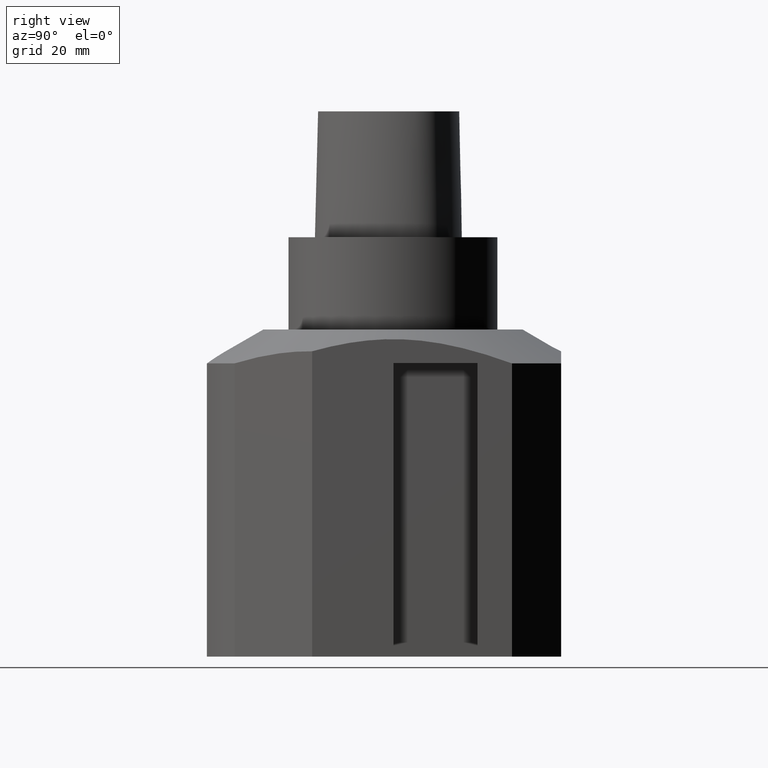
[diagram: clean part render]
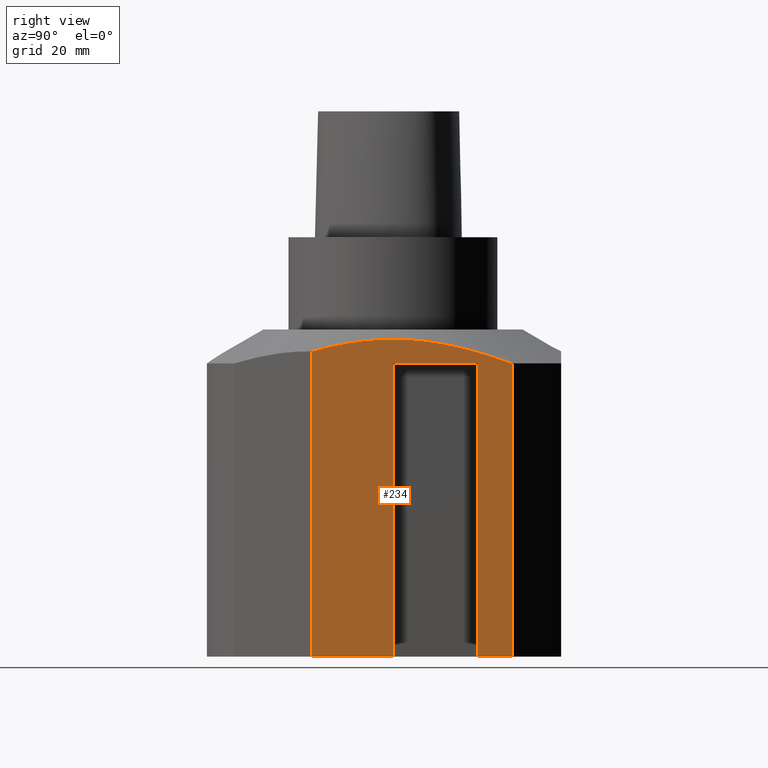
[diagram: same view with one face highlighted and labeled with its STEP entity id]
A machine part, right view. The second image highlights one B-rep face of the part: STEP entity #234.
In plain terms, the highlighted planar face has unit normal (1, -0, 0).
Its self-contained STEP definition (entity closure, byte-faithful):
#128=EDGE_CURVE('240[2]',#374,#375,#376,.T.);
#216=EDGE_CURVE('240[2]',#422,#507,#508,.T.);
#234=ADVANCED_FACE('240[2]',(#532),#533,.T.);
#244=EDGE_CURVE('240[2]',#543,#544,#545,.T.);
#252=EDGE_CURVE('240[2]',#374,#512,#554,.T.);
#288=EDGE_CURVE('240[2]',#512,#597,#598,.T.);
#290=EDGE_CURVE('240[2]',#422,#544,#600,.T.);
#323=EDGE_CURVE('240[2]',#597,#507,#639,.T.);
#342=EDGE_CURVE('240[2]',#375,#543,#661,.T.);
#374=VERTEX_POINT('',#706);
#375=VERTEX_POINT('',#707);
#376=LINE('',#708,#709);
#422=VERTEX_POINT('',#776);
#507=VERTEX_POINT('',#1056);
#508=LINE('',#1057,#1058);
#512=VERTEX_POINT('',#1065);
#532=FACE_OUTER_BOUND('',#1096,.T.);
#533=PLANE('',#1097);
#543=VERTEX_POINT('',#1125);
#544=VERTEX_POINT('',#1126);
#545=(B_SPLINE_CURVE(3,(#1128,#1129,#1130,#1131,#1132,#1133,#1134,#1135,#1136,#1137),.UNSPECIFIED.,.F.,.F.)B_SPLINE_CURVE_WITH_KNOTS((4,3,3,4),(-0.0701450685801817,2.44845535964196,44.6118598380873,50.2285192789122),.UNSPECIFIED.)RATIONAL_B_SPLINE_CURVE((1.0,1.0,1.0,1.0,1.1244176482899,1.14955333864921,1.07540707107796,1.07540707107796,1.07540707107796,1.07540707107796))BOUNDED_CURVE()REPRESENTATION_ITEM('')GEOMETRIC_REPRESENTATION_ITEM()CURVE());
#554=LINE('',#1167,#1168);
#597=VERTEX_POINT('',#1234);
#598=LINE('',#1235,#1236);
#600=LINE('',#1239,#1240);
#639=LINE('',#1688,#1689);
#661=LINE('',#1722,#1723);
#706=CARTESIAN_POINT('',(35.0000000000004,19.9999999999999,-99.9999999999999));
#707=CARTESIAN_POINT('',(35.0000000000002,28.2842712474617,-99.9999999999999));
#708=CARTESIAN_POINT('',(34.9999999999999,19.9999999999999,-99.9999999999999));
#709=VECTOR('',#1732,1.35415650406199);
#776=CARTESIAN_POINT('',(35.0000000000002,-19.3782217350844,-99.9999999999999));
#1056=CARTESIAN_POINT('',(35.0000000000001,-5.6843418860808E-014,-99.9999999999999));
#1057=CARTESIAN_POINT('',(34.9999999999999,-14.0192378864694,-99.9999999999999));
#1058=VECTOR('',#1867,14.0192378864693);
#1065=CARTESIAN_POINT('',(35.0000000000004,19.9999999999999,-29.9999987706541));
#1096=EDGE_LOOP('',(#1883,#1884,#1885,#1886,#1887,#1888,#1889,#1890));
#1097=AXIS2_PLACEMENT_3D('',#1891,#1892,#1893);
#1125=CARTESIAN_POINT('',(35.0000000000002,28.2842712474617,-30.0829021630708));
#1126=CARTESIAN_POINT('',(35.0000000000002,-19.3782217350844,-27.1998706638656));
#1128=CARTESIAN_POINT('',(35.0000000000002,28.2842712474617,-30.0829021630708));
#1129=CARTESIAN_POINT('',(35.0000000000002,27.2862600087644,-29.7207364910171));
#1130=CARTESIAN_POINT('',(35.0000000000002,26.2901536193802,-29.3708683954087));
#1131=CARTESIAN_POINT('',(35.0000000000002,25.298221281347,-29.0353842587268));
#1132=CARTESIAN_POINT('',(35.0,10.5299115094499,-24.0405540025621));
#1133=CARTESIAN_POINT('',(35.0000000000001,-1.40766378960363,-23.1627441798846));
#1134=CARTESIAN_POINT('',(34.9999999999999,-14.0192378864619,-25.8701519957368));
#1135=CARTESIAN_POINT('',(35.0,-15.8150791915659,-26.2556768119199));
#1136=CARTESIAN_POINT('',(35.0000000000002,-17.6031734332232,-26.703468656755));
#1137=CARTESIAN_POINT('',(35.0000000000002,-19.3782217350844,-27.1998706638656));
#1167=CARTESIAN_POINT('',(35.0000000000004,19.9999999999999,-99.9999999999999));
#1168=VECTOR('',#1901,70.0000012293458);
#1234=CARTESIAN_POINT('',(35.0000000000001,-5.6843418860808E-014,-29.9999987706542));
#1235=CARTESIAN_POINT('',(35.0000000000002,19.9999999999999,-29.9999987706541));
#1236=VECTOR('',#1957,20.0);
#1239=CARTESIAN_POINT('',(35.0000000000002,-19.3782217350844,-261.0));
#1240=VECTOR('',#1958,1.0);
#1688=CARTESIAN_POINT('',(35.0000000000001,-8.5265128291212E-014,-29.9999987706542));
#1689=VECTOR('',#2017,70.0000012293457);
#1722=CARTESIAN_POINT('',(35.0000000000002,28.2842712474617,-63.0414510815353));
#1723=VECTOR('',#2048,1.0);
#1732=DIRECTION('',(0.0,1.0,0.0));
#1867=DIRECTION('',(0.0,1.0,0.0));
#1883=ORIENTED_EDGE('',*,*,#290,.F.);
#1884=ORIENTED_EDGE('',*,*,#216,.T.);
#1885=ORIENTED_EDGE('',*,*,#323,.F.);
#1886=ORIENTED_EDGE('',*,*,#288,.F.);
#1887=ORIENTED_EDGE('',*,*,#252,.F.);
#1888=ORIENTED_EDGE('',*,*,#128,.T.);
#1889=ORIENTED_EDGE('',*,*,#342,.T.);
#1890=ORIENTED_EDGE('',*,*,#244,.T.);
#1891=CARTESIAN_POINT('',(35.0000000000002,5.63949169743879,-261.0));
#1892=DIRECTION('',(1.0,-0.0,0.0));
#1893=DIRECTION('',(0.0,1.0,0.0));
#1901=DIRECTION('',(0.0,0.0,1.0));
#1957=DIRECTION('',(0.0,-1.0,0.0));
#1958=DIRECTION('',(0.0,2.28522203787225E-016,1.0));
#2017=DIRECTION('',(0.0,0.0,-1.0));
#2048=DIRECTION('',(-0.0,0.0,1.0));